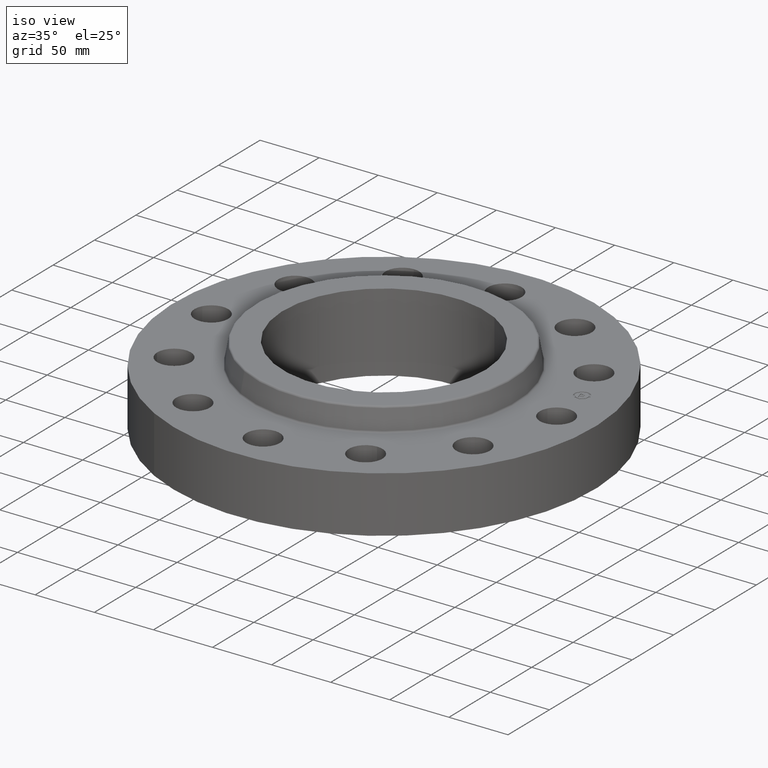
[diagram: clean part render]
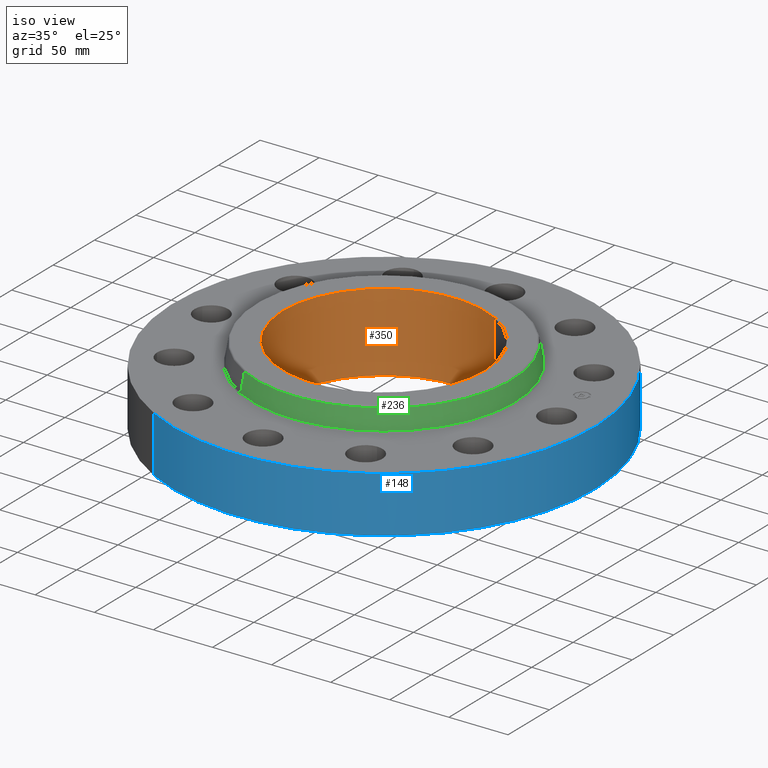
[diagram: same view with three faces highlighted in distinct colors, each labeled with its STEP entity id]
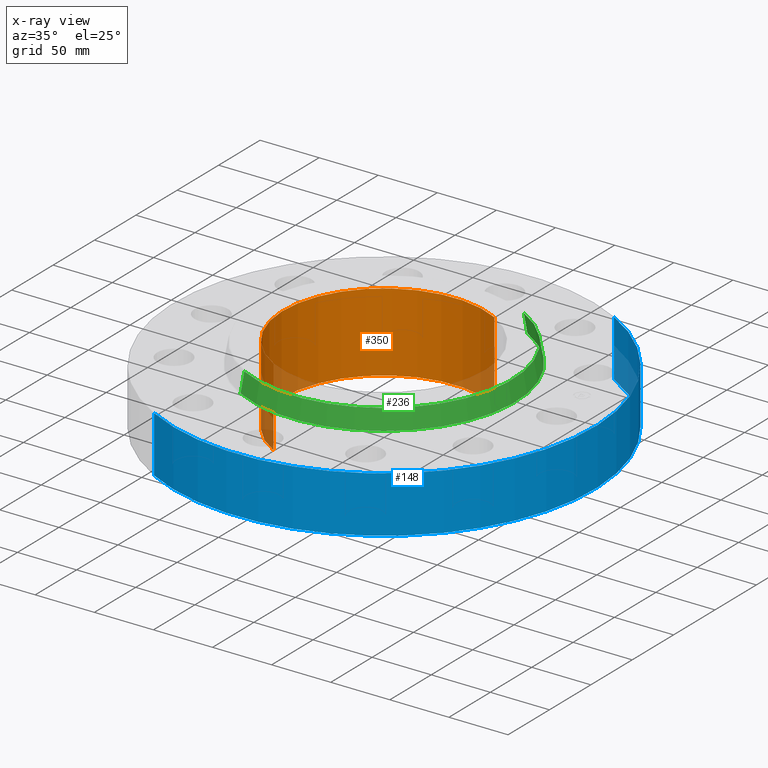
[diagram: x-ray of the same camera — body ghosted, the three highlighted faces saturated]
A machine part, iso view with three faces highlighted in distinct colors.
The next image is the same camera in x-ray (body ghosted, the three faces saturated) — at least one of them is partly hidden behind the body in this view.
Their STEP definitions:

[orange] entity #350 — the highlighted cylindrical surface (partial cylindrical patch) has radius 85.344 mm, axis along (0, 0, -1).
#303=AXIS2_PLACEMENT_3D('Circle Axis2P3D',#301,#302,$) ;
#323=AXIS2_PLACEMENT_3D('Cylinder Axis2P3D',#320,#321,#322) ;
#334=AXIS2_PLACEMENT_3D('Circle Axis2P3D',#332,#333,$) ;
#301=CARTESIAN_POINT('Axis2P3D Location',(0.,0.,2.62000000001)) ;
#305=CARTESIAN_POINT('Vertex',(-1.61086980972,-2.94867740796,2.62000000001)) ;
#307=CARTESIAN_POINT('Vertex',(1.61086980972,2.94867740796,2.62000000001)) ;
#320=CARTESIAN_POINT('Axis2P3D Location',(0.,0.,1.31000000001)) ;
#325=CARTESIAN_POINT('Line Origine',(-1.61086980972,-2.94867740796,1.31000000001)) ;
#329=CARTESIAN_POINT('Vertex',(-1.61086980972,-2.94867740796,-9.23146074019E-015)) ;
#332=CARTESIAN_POINT('Axis2P3D Location',(0.,0.,-9.51120197474E-015)) ;
#336=CARTESIAN_POINT('Vertex',(1.61086980972,2.94867740796,-9.23146074019E-015)) ;
#339=CARTESIAN_POINT('Line Origine',(1.61086980972,2.94867740796,1.31000000001)) ;
#302=DIRECTION('Axis2P3D Direction',(0.,0.,-0.0393700787402)) ;
#321=DIRECTION('Axis2P3D Direction',(0.,0.,-0.0393700787402)) ;
#322=DIRECTION('Axis2P3D XDirection',(0.0188750212049,0.0345504945626,0.)) ;
#326=DIRECTION('Vector Direction',(0.,0.,-0.0393700787402)) ;
#333=DIRECTION('Axis2P3D Direction',(0.,0.,-0.0393700787402)) ;
#340=DIRECTION('Vector Direction',(0.,0.,-0.0393700787402)) ;
#327=VECTOR('Line Direction',#326,0.0393700787402) ;
#341=VECTOR('Line Direction',#340,0.0393700787402) ;
#345=ORIENTED_EDGE('',*,*,#309,.F.) ;
#346=ORIENTED_EDGE('',*,*,#331,.T.) ;
#347=ORIENTED_EDGE('',*,*,#338,.T.) ;
#348=ORIENTED_EDGE('',*,*,#343,.F.) ;
#350=ADVANCED_FACE('PartBody',(#349),#324,.F.) ;
#304=CIRCLE('generated circle',#303,3.36000000001) ;
#335=CIRCLE('generated circle',#334,3.36000000001) ;
#324=CYLINDRICAL_SURFACE('generated cylinder',#323,3.36000000001) ;
#309=EDGE_CURVE('',#306,#308,#304,.T.) ;
#331=EDGE_CURVE('',#306,#330,#328,.T.) ;
#338=EDGE_CURVE('',#330,#337,#335,.T.) ;
#343=EDGE_CURVE('',#308,#337,#342,.T.) ;
#344=EDGE_LOOP('',(#345,#346,#347,#348)) ;
#349=FACE_OUTER_BOUND('',#344,.T.) ;
#328=LINE('Line',#325,#327) ;
#342=LINE('Line',#339,#341) ;
#306=VERTEX_POINT('',#305) ;
#308=VERTEX_POINT('',#307) ;
#330=VERTEX_POINT('',#329) ;
#337=VERTEX_POINT('',#336) ;

[blue] entity #148 — the highlighted cylindrical surface (partial cylindrical patch) has radius 177.8 mm, axis along (0, 0, -1).
#95=AXIS2_PLACEMENT_3D('Cylinder Axis2P3D',#92,#93,#94) ;
#134=AXIS2_PLACEMENT_3D('Circle Axis2P3D',#132,#133,$) ;
#139=AXIS2_PLACEMENT_3D('Circle Axis2P3D',#137,#138,$) ;
#92=CARTESIAN_POINT('Axis2P3D Location',(0.,0.,1.31000000001)) ;
#101=CARTESIAN_POINT('Vertex',(-3.35597877024,-6.14307793326,8.39223703654E-016)) ;
#103=CARTESIAN_POINT('Vertex',(3.35597877024,6.14307793326,8.39223703654E-016)) ;
#106=CARTESIAN_POINT('Line Origine',(-3.35597877024,-6.14307793326,0.940000000004)) ;
#110=CARTESIAN_POINT('Vertex',(-3.35597877024,-6.14307793326,1.88000000001)) ;
#117=CARTESIAN_POINT('Vertex',(3.35597877024,6.14307793326,1.88000000001)) ;
#120=CARTESIAN_POINT('Line Origine',(3.35597877024,6.14307793326,0.940000000004)) ;
#132=CARTESIAN_POINT('Axis2P3D Location',(0.,0.,8.39223703654E-016)) ;
#137=CARTESIAN_POINT('Axis2P3D Location',(0.,0.,1.88000000001)) ;
#93=DIRECTION('Axis2P3D Direction',(0.,0.,-0.0393700787402)) ;
#94=DIRECTION('Axis2P3D XDirection',(0.0188750212049,0.0345504945626,0.)) ;
#107=DIRECTION('Vector Direction',(0.,0.,-0.0393700787402)) ;
#121=DIRECTION('Vector Direction',(0.,0.,-0.0393700787402)) ;
#133=DIRECTION('Axis2P3D Direction',(0.,0.,-0.0393700787402)) ;
#138=DIRECTION('Axis2P3D Direction',(0.,0.,-0.0393700787402)) ;
#108=VECTOR('Line Direction',#107,0.0393700787402) ;
#122=VECTOR('Line Direction',#121,0.0393700787402) ;
#143=ORIENTED_EDGE('',*,*,#136,.F.) ;
#144=ORIENTED_EDGE('',*,*,#124,.T.) ;
#145=ORIENTED_EDGE('',*,*,#141,.T.) ;
#146=ORIENTED_EDGE('',*,*,#112,.F.) ;
#148=ADVANCED_FACE('PartBody',(#147),#96,.T.) ;
#135=CIRCLE('generated circle',#134,7.00000000003) ;
#140=CIRCLE('generated circle',#139,7.00000000003) ;
#96=CYLINDRICAL_SURFACE('generated cylinder',#95,7.00000000003) ;
#112=EDGE_CURVE('',#102,#111,#109,.F.) ;
#124=EDGE_CURVE('',#104,#118,#123,.F.) ;
#136=EDGE_CURVE('',#104,#102,#135,.T.) ;
#141=EDGE_CURVE('',#118,#111,#140,.T.) ;
#142=EDGE_LOOP('',(#143,#144,#145,#146)) ;
#147=FACE_OUTER_BOUND('',#142,.T.) ;
#109=LINE('Line',#106,#108) ;
#123=LINE('Line',#120,#122) ;
#102=VERTEX_POINT('',#101) ;
#104=VERTEX_POINT('',#103) ;
#111=VERTEX_POINT('',#110) ;
#118=VERTEX_POINT('',#117) ;

[green] entity #236 — the highlighted conical surface has half-angle 10 deg.
#172=AXIS2_PLACEMENT_3D('Circle Axis2P3D',#170,#171,$) ;
#209=AXIS2_PLACEMENT_3D('Cone Axis2P3D',#206,#207,#208) ;
#220=AXIS2_PLACEMENT_3D('Circle Axis2P3D',#218,#219,$) ;
#167=CARTESIAN_POINT('Vertex',(2.09329535971,3.83175145387,1.92958110935)) ;
#170=CARTESIAN_POINT('Axis2P3D Location',(0.,0.,1.92958110935)) ;
#174=CARTESIAN_POINT('Vertex',(-2.09329535971,-3.83175145387,1.92958110935)) ;
#206=CARTESIAN_POINT('Axis2P3D Location',(0.,0.,2.57041889067)) ;
#211=CARTESIAN_POINT('Line Origine',(2.06620853805,3.78216935941,2.25000000001)) ;
#215=CARTESIAN_POINT('Vertex',(2.03912171639,3.73258726494,2.57041889067)) ;
#218=CARTESIAN_POINT('Axis2P3D Location',(0.,0.,2.57041889067)) ;
#222=CARTESIAN_POINT('Vertex',(-2.03912171639,-3.73258726494,2.57041889067)) ;
#225=CARTESIAN_POINT('Line Origine',(-2.06620853805,-3.78216935941,2.25000000001)) ;
#171=DIRECTION('Axis2P3D Direction',(0.,0.,-0.0393700787402)) ;
#207=DIRECTION('Axis2P3D Direction',(0.,0.,-0.0393700787402)) ;
#208=DIRECTION('Axis2P3D XDirection',(-0.0188750212049,-0.0345504945626,0.)) ;
#212=DIRECTION('Vector Direction',(0.00327761303565,0.00599963041829,-0.03877195878)) ;
#219=DIRECTION('Axis2P3D Direction',(0.,0.,-0.0393700787402)) ;
#226=DIRECTION('Vector Direction',(-0.00327761303565,-0.00599963041829,-0.03877195878)) ;
#213=VECTOR('Line Direction',#212,0.0393700787402) ;
#227=VECTOR('Line Direction',#226,0.0393700787402) ;
#231=ORIENTED_EDGE('',*,*,#176,.F.) ;
#232=ORIENTED_EDGE('',*,*,#217,.T.) ;
#233=ORIENTED_EDGE('',*,*,#224,.T.) ;
#234=ORIENTED_EDGE('',*,*,#229,.F.) ;
#236=ADVANCED_FACE('PartBody',(#235),#210,.T.) ;
#173=CIRCLE('generated circle',#172,4.36625751271) ;
#221=CIRCLE('generated circle',#220,4.2532605216) ;
#210=CONICAL_SURFACE('Cone',#209,4.2532605216,0.174532925199) ;
#176=EDGE_CURVE('',#168,#175,#173,.T.) ;
#217=EDGE_CURVE('',#168,#216,#214,.F.) ;
#224=EDGE_CURVE('',#216,#223,#221,.T.) ;
#229=EDGE_CURVE('',#175,#223,#228,.F.) ;
#230=EDGE_LOOP('',(#231,#232,#233,#234)) ;
#235=FACE_OUTER_BOUND('',#230,.T.) ;
#214=LINE('Line',#211,#213) ;
#228=LINE('Line',#225,#227) ;
#168=VERTEX_POINT('',#167) ;
#175=VERTEX_POINT('',#174) ;
#216=VERTEX_POINT('',#215) ;
#223=VERTEX_POINT('',#222) ;